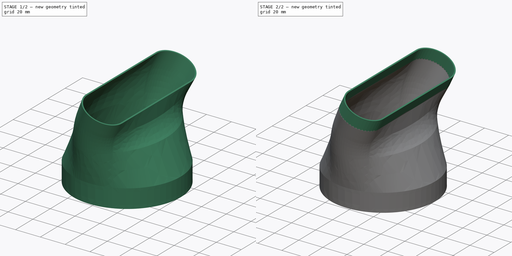
[diagram: build sequence overview — one tinted view per stage of 2, left to right]
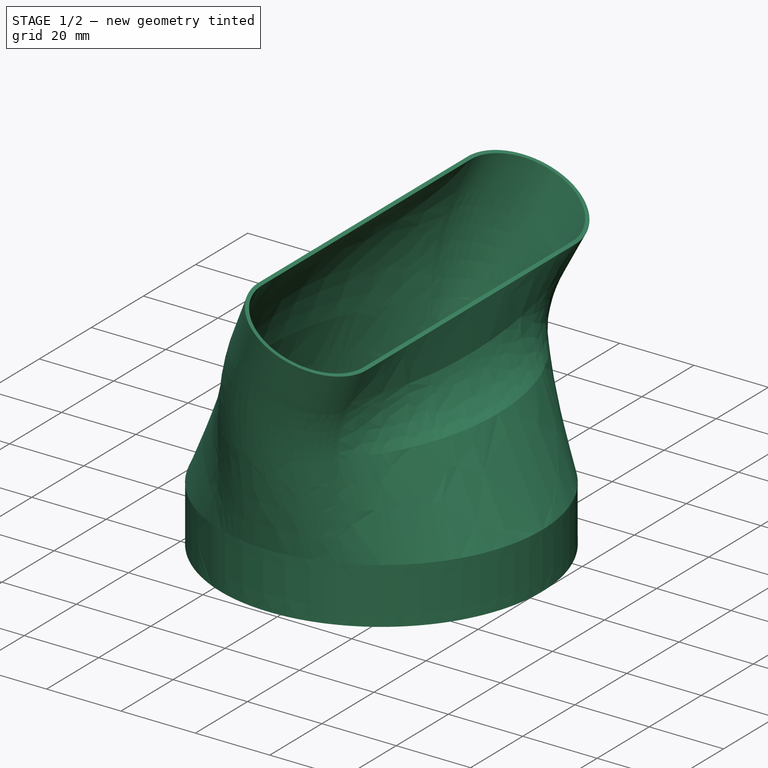
[diagram: stage 1 of 2 — iso view after this stage's code; geometry added in this stage tinted green]
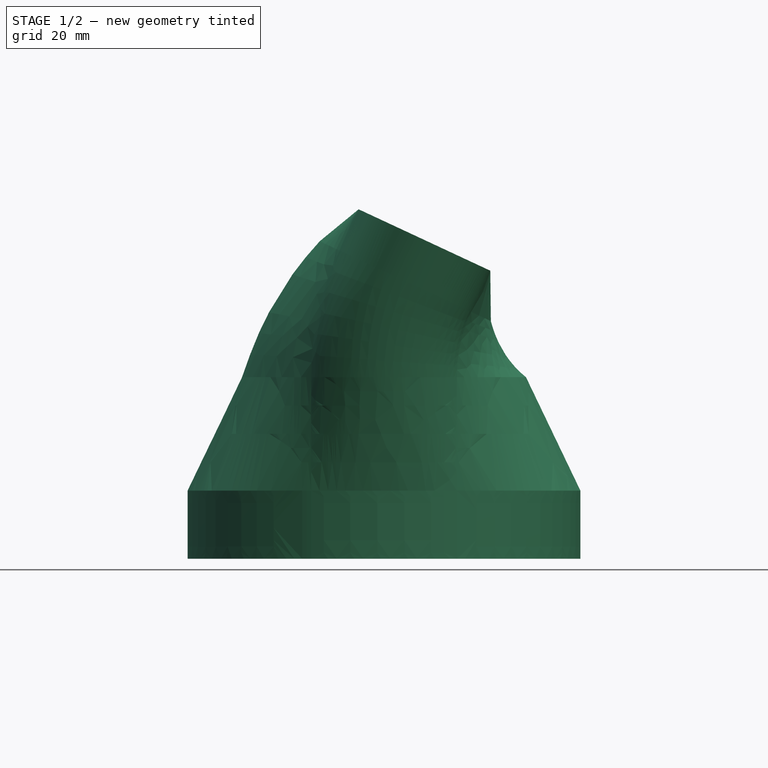
[diagram: stage 1 of 2 — front view after this stage's code; geometry added in this stage tinted green]
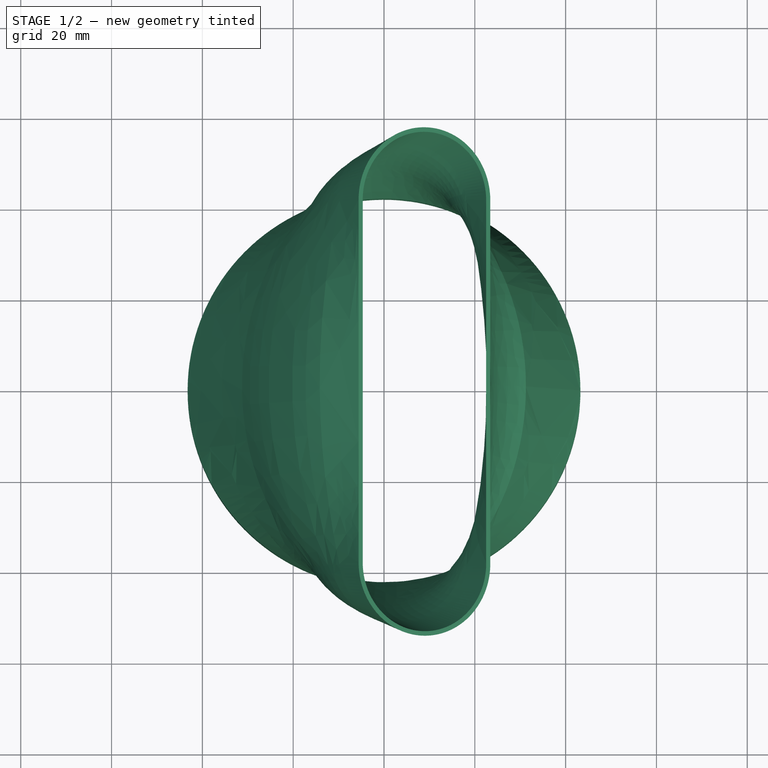
[diagram: stage 1 of 2 — top view after this stage's code; geometry added in this stage tinted green]
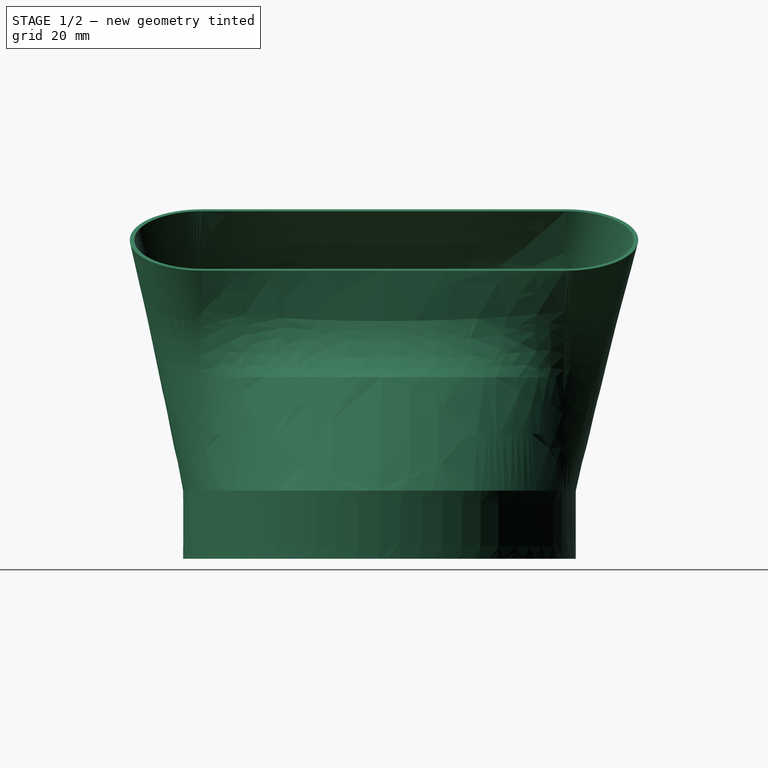
[diagram: stage 1 of 2 — right view after this stage's code; geometry added in this stage tinted green]
FCSTD DOCUMENT  (FreeCAD 0.21R33771 (Git))
Label: MilwaukeeBlowerAdapter_35DegreeAngle
License: All rights reserved
LicenseURL: https://en.wikipedia.org/wiki/All_rights_reserved
objects: Sketcher::SketchObject×3, PartDesign::Pad×2, PartDesign::Plane×1, PartDesign::AdditivePipe×1, PartDesign::Body×1
note: 11 computed .brp shape members not serialized (recipe doc carries the construction recipe); baked Part::Feature solids carry a one-line shape summary decoded from their .brp

FEATURE [Sketcher::SketchObject] Sketch
  FullyConstrained = true
  MapMode = 5
  Support = -> [XY_Plane]
  sketch-geometry (4):
    g0: Circle CenterX=0 CenterY=0 CenterZ=0 NormalX=0 NormalY=0 NormalZ=1 AngleXU=0 Radius=42.25
    g1: Circle CenterX=0 CenterY=0 CenterZ=0 NormalX=0 NormalY=0 NormalZ=1 AngleXU=0 Radius=43.25
    g2: GeomPoint X=42.25 Y=0 Z=0
    g3: GeomPoint X=43.25 Y=0 Z=0
  constraints (8):
    c: Coincident(g0,g-1)
    c: Diameter(g0) = 84.5
    c: Coincident(g1,g0)
    c: PointOnObject(g2,g0)
    c: PointOnObject(g3,g1)
    c: PointOnObject(g2,g-1)
    c: PointOnObject(g3,g-1)
    c: DistanceX(g2,g3) = 1
FEATURE [Sketcher::SketchObject] Sketch001
  FullyConstrained = true
  MapMode = 5
  Placement = pos=(0,0,0) rot=(1,0,0;1.5708rad)
  Support = -> [XZ_Plane]
  sketch-geometry (3):
    g0: LineSegment StartX=0 StartY=0 StartZ=0 EndX=0 EndY=25 EndZ=0
    g1: ArcOfCircle CenterX=50 CenterY=25 CenterZ=0 NormalX=0 NormalY=0 NormalZ=1 AngleXU=0 Radius=50 StartAngle=2.70526 EndAngle=3.14159
    g2: LineSegment StartX=4.68461 StartY=46.1309 StartZ=0 EndX=8.91079 EndY=55.194 EndZ=0
  constraints (9):
    c: Coincident(g0,g-1)
    c: PointOnObject(g0,g-2)
    c: DistanceY(g0,g0) = 25
    c: Coincident(g1,g0)
    c: Horizontal(g0,g1)
    c: Angle(g1) = 0.436332
    c: Tangent(g2,g1) = 1.5708
    c: Radius(g1) = 50
    c: Distance(g1,g2) = 10
FEATURE [PartDesign::Plane] DatumPlane
  AttachmentOffset = pos=(1,0,0) rot=(0,0,1;0rad)
  Length = 61.5279
  MapMode = 47
  Placement = pos=(8.91079,1,55.194) rot=(0.211541,0.211541,0.954201;1.61766rad)
  ResizeMode = 0
  Support = -> [Sketch001]
  Width = 77.9742
FEATURE [Sketcher::SketchObject] Sketch002
  FullyConstrained = true
  MapMode = 5
  Placement = pos=(8.91079,1,55.194) rot=(0.211541,0.211541,0.954201;1.61766rad)
  Support = -> [DatumPlane]
  sketch-geometry (10):
    g0: ArcOfCircle CenterX=-40 CenterY=0 CenterZ=0 NormalX=0 NormalY=0 NormalZ=1 AngleXU=0 Radius=15 StartAngle=1.5708 EndAngle=4.71239
    g1: ArcOfCircle CenterX=40 CenterY=0 CenterZ=0 NormalX=0 NormalY=0 NormalZ=1 AngleXU=0 Radius=15 StartAngle=4.71239 EndAngle=7.85398
    g2: LineSegment StartX=-40 StartY=-15 StartZ=0 EndX=40 EndY=-15 EndZ=0
    g3: LineSegment StartX=40 StartY=15 StartZ=0 EndX=-40 EndY=15 EndZ=0
    g4: GeomPoint X=-55 Y=0 Z=0
    g5: GeomPoint X=55 Y=0 Z=0
    g6: ArcOfCircle CenterX=-40 CenterY=0 CenterZ=0 NormalX=0 NormalY=0 NormalZ=1 AngleXU=0 Radius=16 StartAngle=1.5708 EndAngle=4.71239
    g7: ArcOfCircle CenterX=40 CenterY=0 CenterZ=0 NormalX=0 NormalY=0 NormalZ=1 AngleXU=0 Radius=16 StartAngle=4.71239 EndAngle=7.85398
    g8: LineSegment StartX=-40 StartY=-16 StartZ=0 EndX=40 EndY=-16 EndZ=0
    g9: LineSegment StartX=40 StartY=16 StartZ=0 EndX=-40 EndY=16 EndZ=0
  constraints (21):
    c: Tangent(g0,g2) = -1.5708
    c: Tangent(g2,g1) = -1.5708
    c: Tangent(g1,g3) = -1.5708
    c: Tangent(g3,g0) = -1.5708
    c: Equal(g0,g1)
    c: PointOnObject(g0,g-1)
    c: DistanceY(g0,g0) = 30
    c: Symmetric(g0,g1,g-2)
    c: PointOnObject(g4,g0)
    c: PointOnObject(g5,g1)
    c: PointOnObject(g5,g-1)
    c: PointOnObject(g4,g-1)
    c: DistanceX(g4,g5) = 110
    c: Tangent(g6,g8) = -1.5708
    c: Tangent(g8,g7) = -1.5708
    c: Tangent(g7,g9) = -1.5708
    c: Tangent(g9,g6) = -1.5708
    c: Equal(g6,g7)
    c: Coincident(g6,g0)
    c: Coincident(g7,g1)
    c: DistanceY(g0,g6) = 1
FEATURE [PartDesign::AdditivePipe] AdditivePipe
  AuxilleryCurvelinear = true
  AuxillerySpineTangent = false
  Binormal = (0,0,0)
  Mode = 0
  Profile = -> Sketch
  Sections = -> [Sketch002]
  Spine = -> Sketch001 [Edge1,Edge2,Edge3]
  SpineTangent = false
  Transformation = 1
  Transition = 0
FEATURE [PartDesign::Pad] Pad
  BaseFeature = -> AdditivePipe
  Direction = (0,0,-1)
  Length = 15
  Length2 = 10
  Profile = -> AdditivePipe [Face1]
  Type = 0
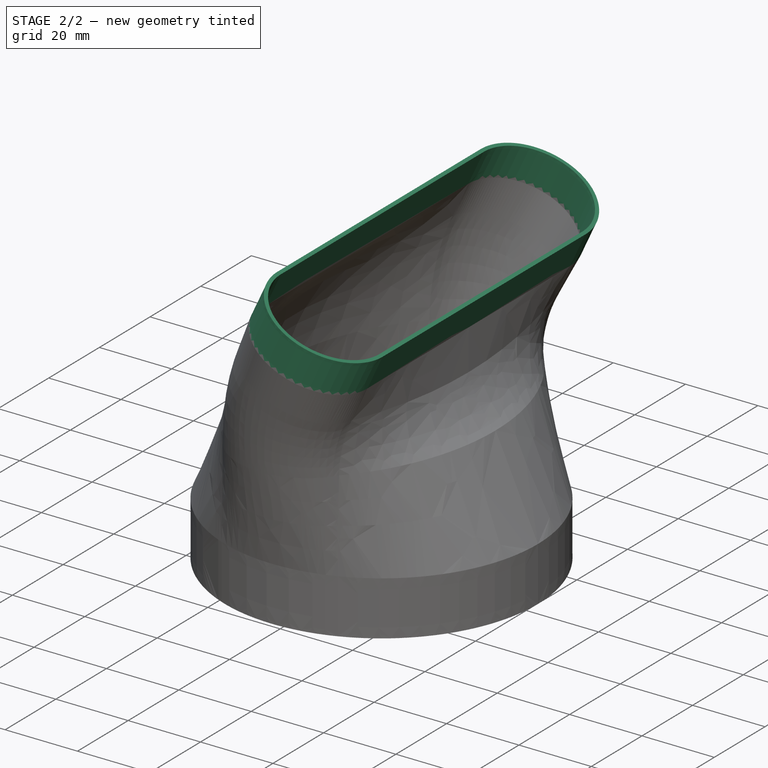
[diagram: stage 2 of 2 — iso view after this stage's code; geometry added in this stage tinted green]
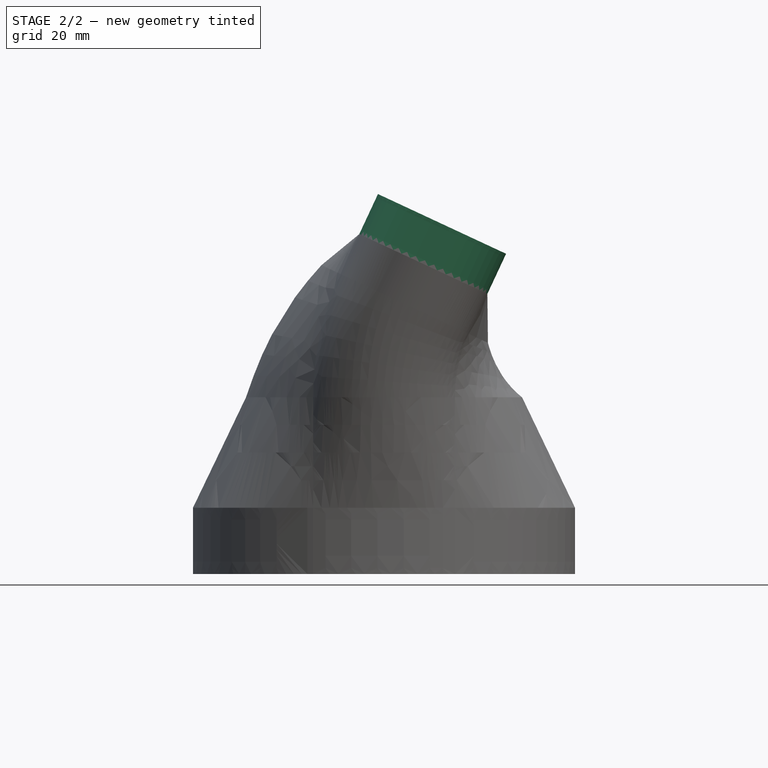
[diagram: stage 2 of 2 — front view after this stage's code; geometry added in this stage tinted green]
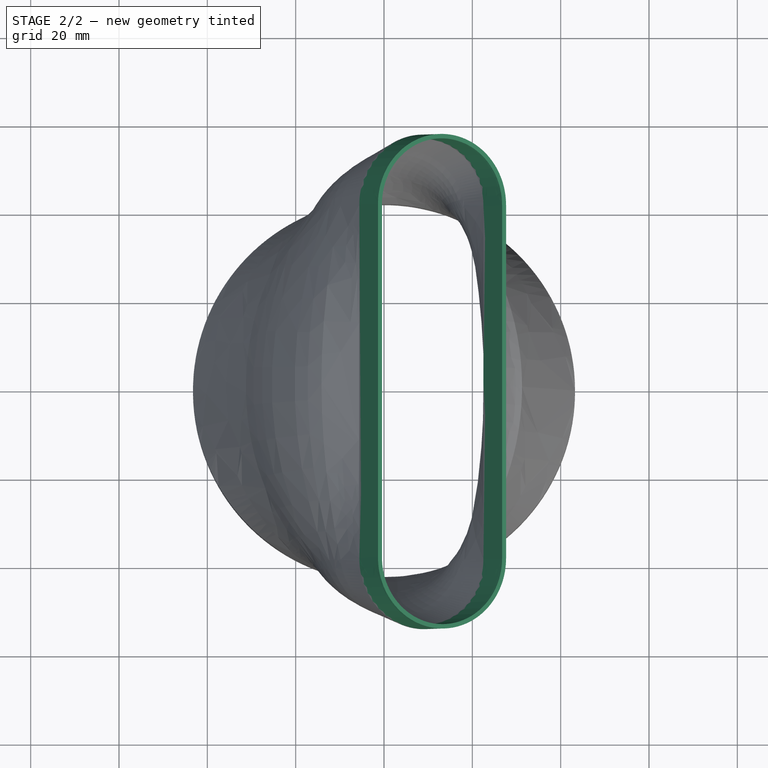
[diagram: stage 2 of 2 — top view after this stage's code; geometry added in this stage tinted green]
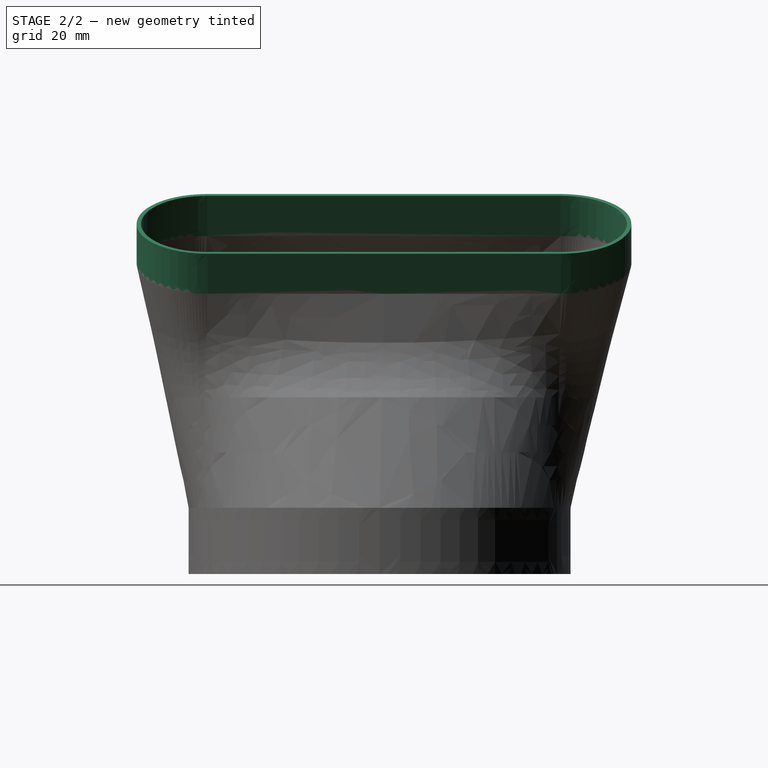
[diagram: stage 2 of 2 — right view after this stage's code; geometry added in this stage tinted green]
FEATURE [PartDesign::Pad] Pad001
  BaseFeature = -> Pad
  Direction = (0.422618,2e-16,0.906308)
  Length = 10
  Length2 = 10
  Profile = -> Pad [Face25]
  Type = 0
FEATURE [PartDesign::Body] Body  label="Körper"
  Group = -> [Sketch,Sketch001,DatumPlane,Sketch002,AdditivePipe,Pad,Pad001]
  Origin = -> Origin
  Tip = -> Pad001
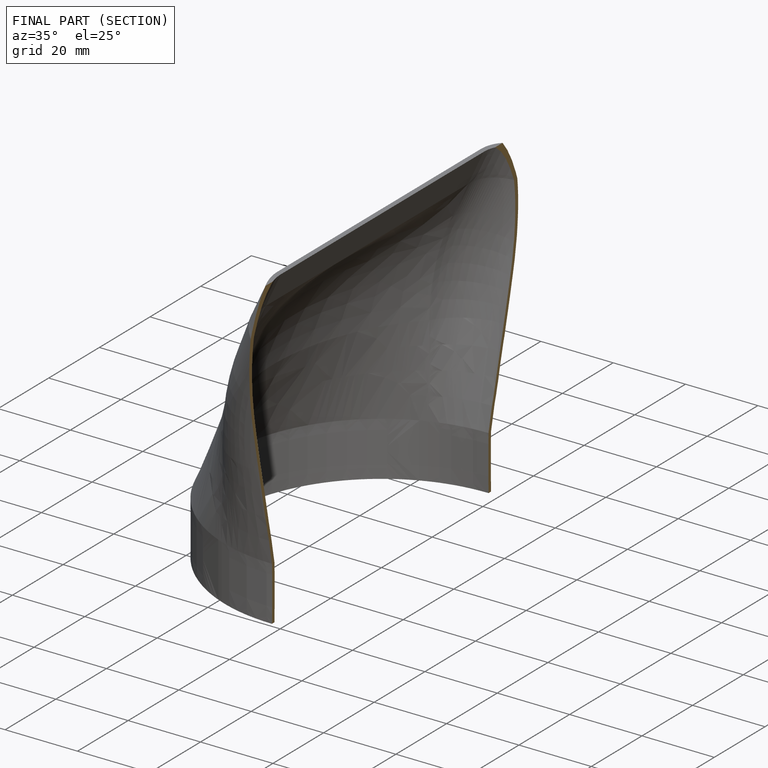
[diagram: finished part — half-section view (interior)]
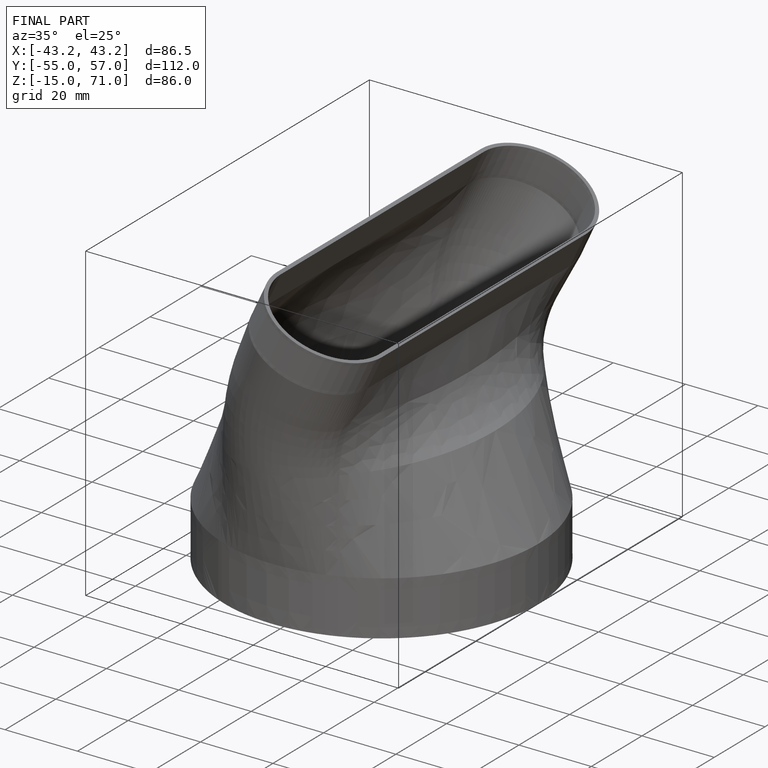
[diagram: finished part — iso view with bounding-box wireframe]
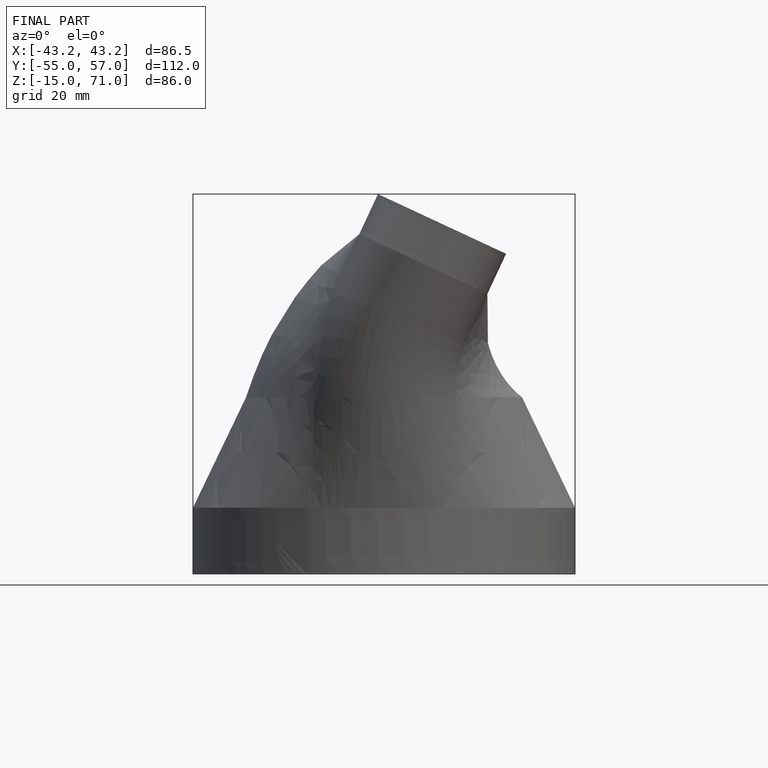
[diagram: finished part — front view with bounding-box wireframe]
